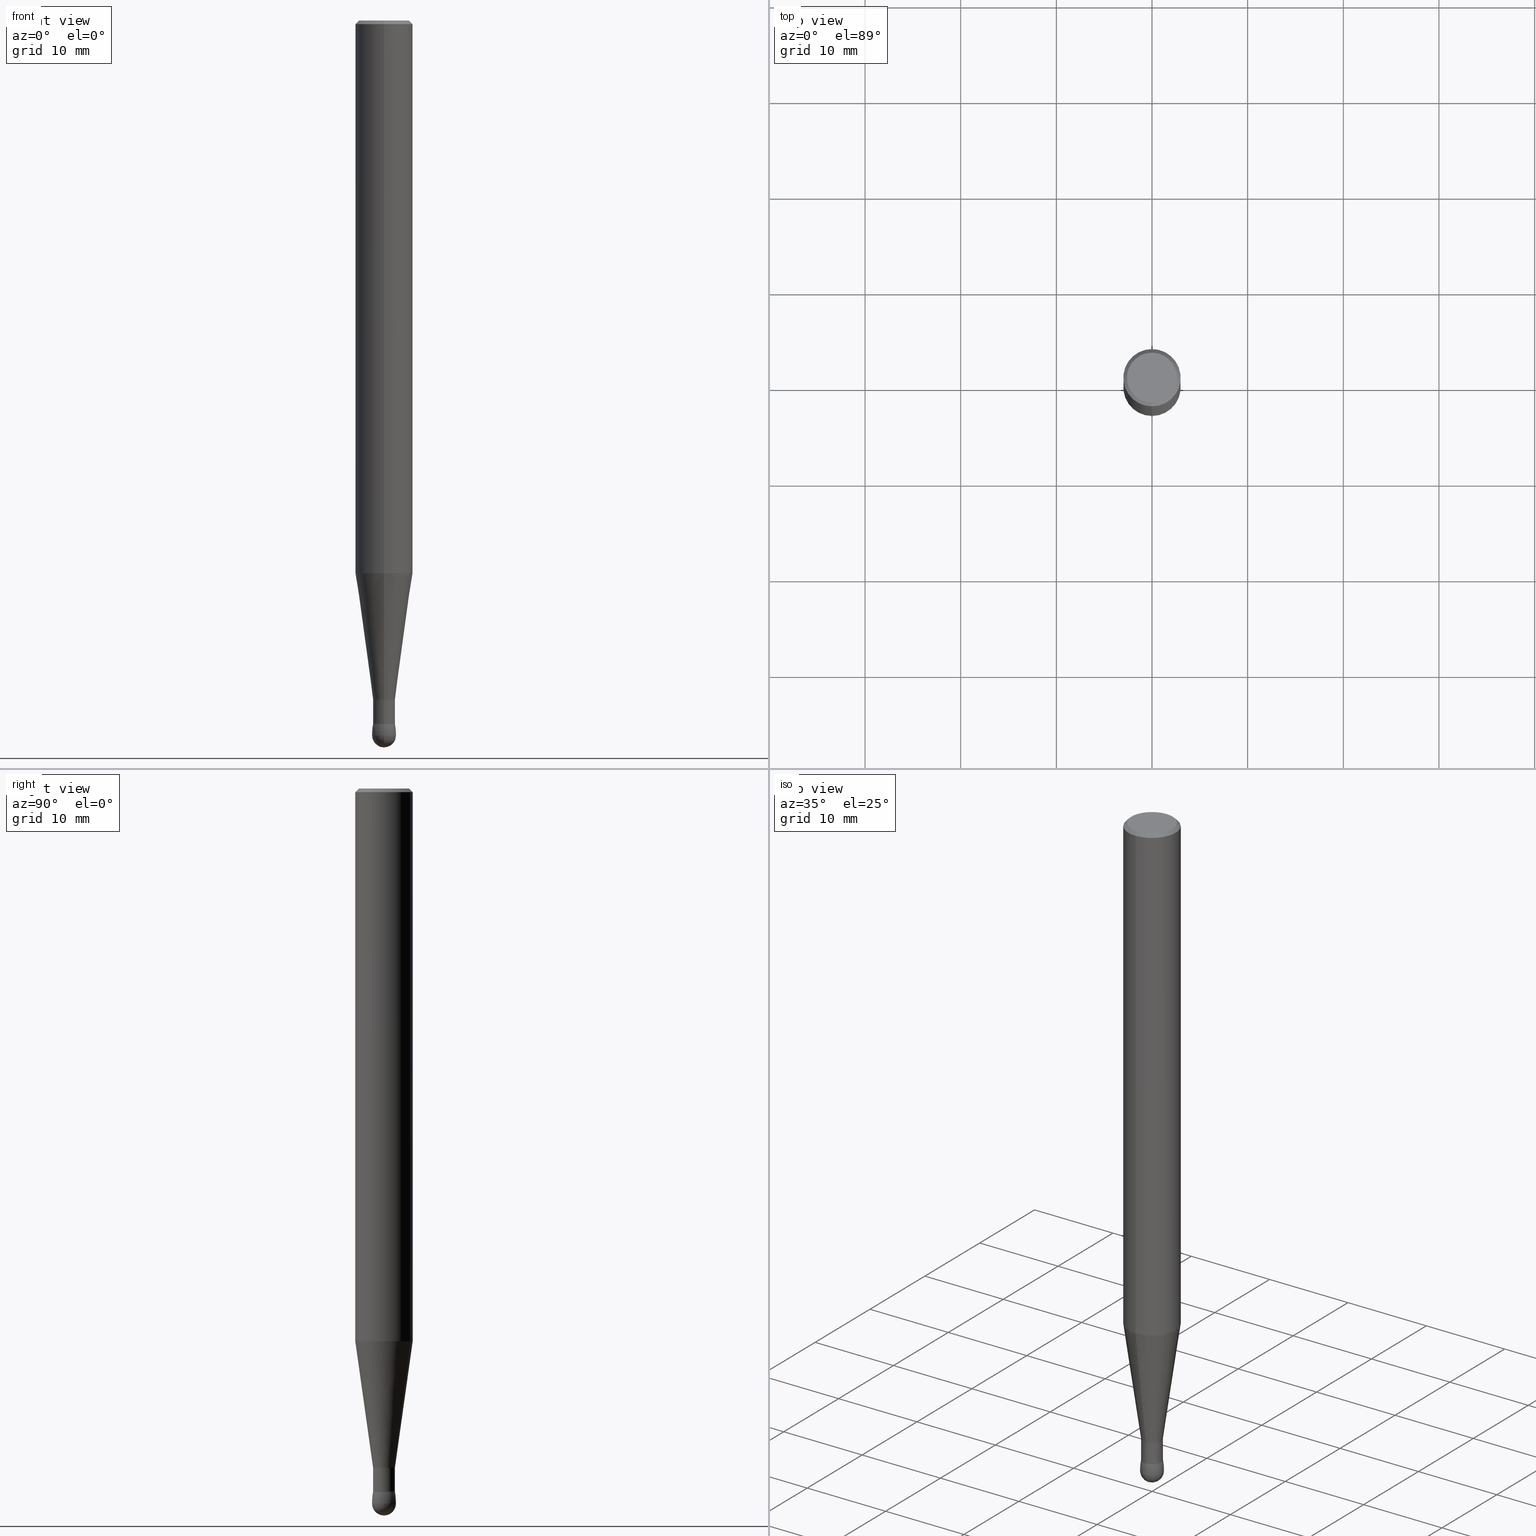
[diagram: canonical four-view strip — front | top / right | iso, engineering-drawing reading convention]
A machine part, canonical four-view strip (front | top / right | iso — engineering-drawing reading convention). The complete STEP part file that produces these views, byte-faithful:
ISO-10303-21;
HEADER;
FILE_DESCRIPTION (( 'STEP AP203' ),
    '1' );
FILE_NAME ('91352.STEP',
    '2024-02-29T19:21:59',
    ( '' ),
    ( '' ),
    'SwSTEP 2.0',
    'SolidWorks 2023',
    '' );
FILE_SCHEMA (( 'CONFIG_CONTROL_DESIGN' ));
ENDSEC;

DATA;
#1 = AXIS2_PLACEMENT_3D ( 'NONE', #36, #193, #232 ) ;
#2 = DIRECTION ( 'NONE',  ( -9.718405697420262401E-16, -0.1391731009600623015, 0.9902680687415706950 ) ) ;
#3 = ORIENTED_EDGE ( 'NONE', *, *, #438, .F. ) ;
#4 = FACE_OUTER_BOUND ( 'NONE', #248, .T. ) ;
#5 = AXIS2_PLACEMENT_3D ( 'NONE', #273, #427, #240 ) ;
#6 = EDGE_LOOP ( 'NONE', ( #322, #394 ) ) ;
#7 = AXIS2_PLACEMENT_3D ( 'NONE', #8, #279, #49 ) ;
#8 = CARTESIAN_POINT ( 'NONE',  ( -1.712915523707316760E-15, -0.2410714285714394556, -2.942899999999999405 ) ) ;
#9 = EDGE_CURVE ( 'NONE', #94, #92, #176, .T. ) ;
#10 = ORIENTED_EDGE ( 'NONE', *, *, #363, .T. ) ;
#11 = ORIENTED_EDGE ( 'NONE', *, *, #383, .F. ) ;
#12 = DIRECTION ( 'NONE',  ( 6.982962677686265922E-15, 1.000000000000000000, 0.000000000000000000 ) ) ;
#13 = ORIENTED_EDGE ( 'NONE', *, *, #271, .F. ) ;
#14 = ADVANCED_FACE ( 'NONE', ( #58 ), #180, .T. ) ;
#15 = DIRECTION ( 'NONE',  ( -6.388744773466957899E-29, -2.155514283634369569E-15, 1.000000000000000000 ) ) ;
#16 = ORIENTED_EDGE ( 'NONE', *, *, #483, .T. ) ;
#17 = ORIENTED_EDGE ( 'NONE', *, *, #407, .T. ) ;
#18 = APPROVAL_PERSON_ORGANIZATION ( #299, #229, #104 ) ;
#19 = CARTESIAN_POINT ( 'NONE',  ( -5.694606063652534434E-16, -0.04500000000001029565, -2.795300000000000118 ) ) ;
#20 = EDGE_LOOP ( 'NONE', ( #3, #91, #167, #11 ) ) ;
#21 = DIRECTION ( 'NONE',  ( -4.937700262183094951E-15, -0.7071067811892011168, 0.7071067811838938066 ) ) ;
#22 = DESIGN_CONTEXT ( 'detailed design', #415, 'design' ) ;
#24 = VERTEX_POINT ( 'NONE', #331 ) ;
#23 = CARTESIAN_POINT ( 'NONE',  ( 7.384049168616664701E-29, -1.000688621776488912E-14, -2.942900000000000293 ) ) ;
#25 = EDGE_LOOP ( 'NONE', ( #386, #246, #393, #54 ) ) ;
#26 =( NAMED_UNIT ( * ) PLANE_ANGLE_UNIT ( ) SI_UNIT ( $, .RADIAN. ) );
#27 = VECTOR ( 'NONE', #48, 39.37007874015748143 ) ;
#28 = CIRCLE ( 'NONE', #145, 0.2902714285714297349 ) ;
#29 = PERSON_AND_ORGANIZATION ( #35, #118 ) ;
#30 = COORDINATED_UNIVERSAL_TIME_OFFSET ( 5, 0, .BEHIND. ) ;
#31 = CALENDAR_DATE ( 2024, 29, 2 ) ;
#32 = CARTESIAN_POINT ( 'NONE',  ( 3.135350242281877803E-16, 0.04489999999999042674, -2.893699999999999939 ) ) ;
#33 = DATE_AND_TIME ( #69, #352 ) ;
#34 = APPROVAL_PERSON_ORGANIZATION ( #29, #486, #254 ) ;
#35 = PERSON ( 'UNSPECIFIED', 'UNSPECIFIED', 'UNSPECIFIED', ('UNSPECIFIED'), ('UNSPECIFIED'), ('UNSPECIFIED') ) ;
#36 = CARTESIAN_POINT ( 'NONE',  ( 6.829317653655446739E-29, -9.769048018491451838E-15, -2.795300000000000118 ) ) ;
#37 = CARTESIAN_POINT ( 'NONE',  ( 7.384049168616664701E-29, -1.000688621776488912E-14, -2.942900000000000293 ) ) ;
#38 = DIRECTION ( 'NONE',  ( -6.388744773466957899E-29, -2.155514283634369569E-15, 1.000000000000000000 ) ) ;
#39 = AXIS2_PLACEMENT_3D ( 'NONE', #195, #312, #464 ) ;
#40 = LINE ( 'NONE', #188, #307 ) ;
#41 = EDGE_CURVE ( 'NONE', #135, #103, #86, .T. ) ;
#42 = CARTESIAN_POINT ( 'NONE',  ( 5.794476010124239052E-16, 0.04499999999999076267, -2.795300000000000118 ) ) ;
#43 = ORIENTED_EDGE ( 'NONE', *, *, #363, .F. ) ;
#44 = PRODUCT_RELATED_PRODUCT_CATEGORY ( 'detail', '', ( #428 ) ) ;
#45 = CONICAL_SURFACE ( 'NONE', #302, 0.04500000000000052569, 0.1396263401595466969 ) ;
#46 = CARTESIAN_POINT ( 'NONE',  ( 3.193889597242395096E-16, 0.04489999999999041286, -2.893699999999999939 ) ) ;
#47 = DIRECTION ( 'NONE',  ( 2.443143009213839704E-29, -3.494812012482185664E-15, -1.000000000000000000 ) ) ;
#48 = DIRECTION ( 'NONE',  ( 2.443143009213839704E-29, -3.494812012482185664E-15, -1.000000000000000000 ) ) ;
#49 = DIRECTION ( 'NONE',  ( 7.105427357601000281E-15, 1.000000000000000000, 0.000000000000000000 ) ) ;
#50 = CARTESIAN_POINT ( 'NONE',  ( 8.246878922347458960E-16, 0.1180999999999995942, -0.01500000000000011567 ) ) ;
#51 = ORIENTED_EDGE ( 'NONE', *, *, #407, .F. ) ;
#52 = EDGE_LOOP ( 'NONE', ( #201, #10 ) ) ;
#53 = LINE ( 'NONE', #50, #55 ) ;
#54 = ORIENTED_EDGE ( 'NONE', *, *, #172, .F. ) ;
#55 = VECTOR ( 'NONE', #202, 39.37007874015748854 ) ;
#56 = DIRECTION ( 'NONE',  ( 6.982962677686265922E-15, 1.000000000000000000, -3.487819265831422394E-15 ) ) ;
#57 = CIRCLE ( 'NONE', #120, 0.04500000000000053263 ) ;
#58 = FACE_OUTER_BOUND ( 'NONE', #251, .T. ) ;
#59 = EDGE_LOOP ( 'NONE', ( #478, #162 ) ) ;
#60 = DATE_AND_TIME ( #338, #344 ) ;
#61 = AXIS2_PLACEMENT_3D ( 'NONE', #370, #296, #174 ) ;
#62 = CC_DESIGN_APPROVAL ( #242, ( #210 ) ) ;
#63 = PERSON_AND_ORGANIZATION ( #35, #118 ) ;
#64 = EDGE_CURVE ( 'NONE', #362, #92, #448, .T. ) ;
#65 = DATE_TIME_ROLE ( 'creation_date' ) ;
#66 = AXIS2_PLACEMENT_3D ( 'NONE', #77, #74, #422 ) ;
#67 = DIRECTION ( 'NONE',  ( 2.443143009213839704E-29, -3.494812012482185664E-15, -1.000000000000000000 ) ) ;
#68 = EDGE_CURVE ( 'NONE', #418, #208, #410, .T. ) ;
#69 = CALENDAR_DATE ( 2024, 29, 2 ) ;
#70 = AXIS2_PLACEMENT_3D ( 'NONE', #487, #316, #277 ) ;
#71 = FACE_OUTER_BOUND ( 'NONE', #235, .T. ) ;
#72 = AXIS2_PLACEMENT_3D ( 'NONE', #270, #90, #156 ) ;
#73 = CC_DESIGN_APPROVAL ( #486, ( #391 ) ) ;
#74 = DIRECTION ( 'NONE',  ( 2.443143009213839704E-29, -3.494812012482185664E-15, -1.000000000000000000 ) ) ;
#75 = ADVANCED_BREP_SHAPE_REPRESENTATION ( '91352', ( #364, #358, #158 ), #425 ) ;
#76 = CARTESIAN_POINT ( 'NONE',  ( 3.664714513820686793E-31, -5.242218018723174662E-17, -0.01499999999999970281 ) ) ;
#77 = CARTESIAN_POINT ( 'NONE',  ( 3.664714513820686793E-31, -5.242218018723174662E-17, -0.01499999999999970281 ) ) ;
#78 = AXIS2_PLACEMENT_3D ( 'NONE', #32, #324, #213 ) ;
#79 = VERTEX_POINT ( 'NONE', #253 ) ;
#80 = CARTESIAN_POINT ( 'NONE',  ( 6.829317653655446739E-29, -9.769048018491451838E-15, -2.795300000000000118 ) ) ;
#81 = ADVANCED_FACE ( 'NONE', ( #401 ), #224, .T. ) ;
#82 = AXIS2_PLACEMENT_3D ( 'NONE', #233, #461, #150 ) ;
#83 = CARTESIAN_POINT ( 'NONE',  ( 7.199434520694515404E-16, 0.1030999999999996503, -3.601440490485514910E-16 ) ) ;
#84 = DIRECTION ( 'NONE',  ( 6.982962677686265922E-15, 1.000000000000000000, 0.000000000000000000 ) ) ;
#85 = VERTEX_POINT ( 'NONE', #366 ) ;
#86 = CIRCLE ( 'NONE', #447, 0.04920000000000006313 ) ;
#87 = CIRCLE ( 'NONE', #462, 0.1180999999999996636 ) ;
#88 = EDGE_CURVE ( 'NONE', #103, #85, #460, .T. ) ;
#89 = DIRECTION ( 'NONE',  ( 6.982962677686265922E-15, 1.000000000000000000, 2.155514283634369569E-15 ) ) ;
#90 = DIRECTION ( 'NONE',  ( 2.443143009213839704E-29, -3.494812012482185664E-15, -1.000000000000000000 ) ) ;
#91 = ORIENTED_EDGE ( 'NONE', *, *, #185, .T. ) ;
#92 = VERTEX_POINT ( 'NONE', #301 ) ;
#93 = CARTESIAN_POINT ( 'NONE',  ( 8.391509709327309522E-16, 0.1180999999999916700, -2.275166473293722458 ) ) ;
#94 = VERTEX_POINT ( 'NONE', #412 ) ;
#95 = CIRCLE ( 'NONE', #72, 0.04500000000000055345 ) ;
#96 = CARTESIAN_POINT ( 'NONE',  ( 7.387534075530930985E-29, -1.000189563271506308E-14, -2.942899999999998961 ) ) ;
#97 = DIRECTION ( 'NONE',  ( 2.443143009213839704E-29, -3.494812012482185664E-15, -1.000000000000000000 ) ) ;
#98 = ORIENTED_EDGE ( 'NONE', *, *, #244, .F. ) ;
#99 = ADVANCED_FACE ( 'NONE', ( #71 ), #339, .T. ) ;
#100 = CIRCLE ( 'NONE', #373, 0.04500000000000055345 ) ;
#101 = APPLICATION_PROTOCOL_DEFINITION ( 'international standard', 'config_control_design', 1994, #415 ) ;
#102 = EDGE_CURVE ( 'NONE', #208, #130, #95, .T. ) ;
#103 = VERTEX_POINT ( 'NONE', #357 ) ;
#104 = APPROVAL_ROLE ( '' ) ;
#105 = CLOSED_SHELL ( 'NONE', ( #294, #225, #492, #452, #375 ) ) ;
#106 = VECTOR ( 'NONE', #206, 39.37007874015748143 ) ;
#107 = DIRECTION ( 'NONE',  ( 2.443143009213839704E-29, -3.494812012482185664E-15, -1.000000000000000000 ) ) ;
#108 = AXIS2_PLACEMENT_3D ( 'NONE', #345, #455, #116 ) ;
#109 = DIRECTION ( 'NONE',  ( 5.024295867806934309E-15, 0.7071067811892060018, 0.7071067811838889217 ) ) ;
#110 = ORIENTED_EDGE ( 'NONE', *, *, #348, .T. ) ;
#111 = ADVANCED_FACE ( 'NONE', ( #122 ), #228, .T. ) ;
#112 = SHAPE_DEFINITION_REPRESENTATION ( #354, #75 ) ;
#113 = ADVANCED_FACE ( 'NONE', ( #203 ), #243, .T. ) ;
#114 = DIRECTION ( 'NONE',  ( -2.443143009213839704E-29, 3.494812012482185664E-15, 1.000000000000000000 ) ) ;
#115 = AXIS2_PLACEMENT_3D ( 'NONE', #23, #288, #405 ) ;
#116 = DIRECTION ( 'NONE',  ( 6.982962677686265922E-15, 1.000000000000000000, 0.000000000000000000 ) ) ;
#117 = CC_DESIGN_DATE_AND_TIME_ASSIGNMENT ( #404, #215, ( #178 ) ) ;
#118 = ORGANIZATION ( 'UNSPECIFIED', 'UNSPECIFIED', '' ) ;
#119 = AXIS2_PLACEMENT_3D ( 'NONE', #37, #268, #266 ) ;
#120 = AXIS2_PLACEMENT_3D ( 'NONE', #133, #284, #343 ) ;
#121 = FACE_OUTER_BOUND ( 'NONE', #474, .T. ) ;
#122 = FACE_OUTER_BOUND ( 'NONE', #431, .T. ) ;
#123 = DIRECTION ( 'NONE',  ( -2.443143009213839704E-29, 3.494812012482185664E-15, 1.000000000000000000 ) ) ;
#124 = VECTOR ( 'NONE', #109, 39.37007874015748854 ) ;
#125 = LINE ( 'NONE', #161, #399 ) ;
#126 = ORIENTED_EDGE ( 'NONE', *, *, #226, .T. ) ;
#127 = ORIENTED_EDGE ( 'NONE', *, *, #172, .T. ) ;
#128 = CARTESIAN_POINT ( 'NONE',  ( -3.138841723619308256E-16, -0.04490000000001064667, -2.893699999999999939 ) ) ;
#129 = DIRECTION ( 'NONE',  ( 6.982962677686266711E-15, 1.000000000000000000, 0.000000000000000000 ) ) ;
#130 = VERTEX_POINT ( 'NONE', #430 ) ;
#131 = EDGE_CURVE ( 'NONE', #362, #24, #490, .T. ) ;
#132 = DIRECTION ( 'NONE',  ( 2.443143009213839704E-29, -3.494812012482185664E-15, -1.000000000000000000 ) ) ;
#133 = CARTESIAN_POINT ( 'NONE',  ( 7.069722925762088984E-29, -1.011293752051969866E-14, -2.893699999999999939 ) ) ;
#134 = CARTESIAN_POINT ( 'NONE',  ( -8.102248135367445696E-16, -0.1181000000000097527, -2.893699999999999051 ) ) ;
#135 = VERTEX_POINT ( 'NONE', #477 ) ;
#136 = DIRECTION ( 'NONE',  ( 1.000000000000000000, -6.982962677686265922E-15, 4.883557194083112901E-29 ) ) ;
#137 = CC_DESIGN_PERSON_AND_ORGANIZATION_ASSIGNMENT ( #227, #330, ( #178 ) ) ;
#138 = CARTESIAN_POINT ( 'NONE',  ( -3.087224098996519874E-16, -0.04500000000001066341, -2.893699999999999939 ) ) ;
#139 = AXIS2_PLACEMENT_3D ( 'NONE', #466, #173, #89 ) ;
#140 = COORDINATED_UNIVERSAL_TIME_OFFSET ( 5, 0, .BEHIND. ) ;
#141 = CARTESIAN_POINT ( 'NONE',  ( 7.575989275610084022E-29, -9.732017059997860271E-15, -2.942899999999999849 ) ) ;
#142 = APPROVAL_DATE_TIME ( #449, #242 ) ;
#143 = EDGE_LOOP ( 'NONE', ( #281, #171, #265, #441 ) ) ;
#144 = AXIS2_PLACEMENT_3D ( 'NONE', #456, #38, #385 ) ;
#145 = AXIS2_PLACEMENT_3D ( 'NONE', #305, #382, #236 ) ;
#146 = CALENDAR_DATE ( 2024, 29, 2 ) ;
#147 = CIRCLE ( 'NONE', #209, 0.04490000000000052977 ) ;
#148 = APPROVAL_DATE_TIME ( #33, #229 ) ;
#149 = CIRCLE ( 'NONE', #262, 0.04500000000000052569 ) ;
#150 = DIRECTION ( 'NONE',  ( 6.982962677686265922E-15, 1.000000000000000000, -3.494812012482185269E-15 ) ) ;
#151 = AXIS2_PLACEMENT_3D ( 'NONE', #96, #15, #249 ) ;
#152 = EDGE_CURVE ( 'NONE', #92, #238, #445, .T. ) ;
#153 = CIRCLE ( 'NONE', #1, 0.04500000000000052569 ) ;
#154 = LINE ( 'NONE', #239, #124 ) ;
#155 = FACE_OUTER_BOUND ( 'NONE', #6, .T. ) ;
#156 = DIRECTION ( 'NONE',  ( 6.982962677686265922E-15, 1.000000000000000000, 0.000000000000000000 ) ) ;
#157 = DIRECTION ( 'NONE',  ( 2.443143009213839704E-29, -3.494812012482185664E-15, -1.000000000000000000 ) ) ;
#158 = AXIS2_PLACEMENT_3D ( 'NONE', #295, #334, #289 ) ;
#159 = ORIENTED_EDGE ( 'NONE', *, *, #102, .T. ) ;
#160 = ORIENTED_EDGE ( 'NONE', *, *, #333, .F. ) ;
#161 = CARTESIAN_POINT ( 'NONE',  ( -3.135350242280463770E-16, -0.04490000000001064667, -2.893699999999999939 ) ) ;
#162 = ORIENTED_EDGE ( 'NONE', *, *, #438, .T. ) ;
#163 = ADVANCED_FACE ( 'NONE', ( #314 ), #237, .T. ) ;
#164 = ORIENTED_EDGE ( 'NONE', *, *, #453, .F. ) ;
#165 = ORIENTED_EDGE ( 'NONE', *, *, #185, .F. ) ;
#166 =( LENGTH_UNIT ( ) NAMED_UNIT ( * ) SI_UNIT ( $, .METRE. ) );
#167 = ORIENTED_EDGE ( 'NONE', *, *, #379, .T. ) ;
#168 = CIRCLE ( 'NONE', #472, 0.04490000000000052977 ) ;
#169 = EDGE_CURVE ( 'NONE', #79, #467, #57, .T. ) ;
#170 = FACE_OUTER_BOUND ( 'NONE', #52, .T. ) ;
#171 = ORIENTED_EDGE ( 'NONE', *, *, #64, .T. ) ;
#172 = EDGE_CURVE ( 'NONE', #282, #130, #491, .T. ) ;
#173 = DIRECTION ( 'NONE',  ( 6.388744773466956778E-29, 2.155514283634369569E-15, -1.000000000000000000 ) ) ;
#174 = DIRECTION ( 'NONE',  ( 6.982962677686265922E-15, 1.000000000000000000, -3.494812012482185269E-15 ) ) ;
#175 = ORIENTED_EDGE ( 'NONE', *, *, #333, .T. ) ;
#176 = CIRCLE ( 'NONE', #454, 0.1180999999999996358 ) ;
#177 = APPROVAL_DATE_TIME ( #451, #486 ) ;
#178 = SECURITY_CLASSIFICATION ( '', '', #376 ) ;
#179 = COORDINATED_UNIVERSAL_TIME_OFFSET ( 5, 0, .BEHIND. ) ;
#180 = CYLINDRICAL_SURFACE ( 'NONE', #432, 0.1180999999999996358 ) ;
#181 = CIRCLE ( 'NONE', #119, 0.04920000000000033374 ) ;
#182 = LENGTH_MEASURE_WITH_UNIT ( LENGTH_MEASURE( 0.02539999999999999897 ), #166 );
#183 = ADVANCED_FACE ( 'NONE', ( #489 ), #446, .T. ) ;
#184 = LOCAL_TIME ( 14, 21, 59.00000000000000000, #372 ) ;
#185 = EDGE_CURVE ( 'NONE', #468, #130, #154, .T. ) ;
#186 = MECHANICAL_CONTEXT ( 'NONE', #371, 'mechanical' ) ;
#187 = ORIENTED_EDGE ( 'NONE', *, *, #169, .F. ) ;
#188 = CARTESIAN_POINT ( 'NONE',  ( 8.246878922348163019E-16, 0.1180999999999895328, -2.893700000000000383 ) ) ;
#189 = CARTESIAN_POINT ( 'NONE',  ( 7.069722925762087863E-29, -1.011293752051970024E-14, -2.893699999999999939 ) ) ;
#190 = EDGE_LOOP ( 'NONE', ( #423, #346, #127, #402 ) ) ;
#191 = CC_DESIGN_APPROVAL ( #229, ( #178 ) ) ;
#192 = DIRECTION ( 'NONE',  ( 2.443143009213839704E-29, -3.494812012482185664E-15, -1.000000000000000000 ) ) ;
#193 = DIRECTION ( 'NONE',  ( 2.443143009213839704E-29, -3.494812012482185664E-15, -1.000000000000000000 ) ) ;
#194 = ORIENTED_EDGE ( 'NONE', *, *, #88, .F. ) ;
#195 = CARTESIAN_POINT ( 'NONE',  ( 5.558557064025262488E-29, -7.951279121263629209E-15, -2.275166473293722014 ) ) ;
#196 = CARTESIAN_POINT ( 'NONE',  ( -7.587710785535285755E-16, -0.1030999999999996503, 3.603151184869120747E-16 ) ) ;
#197 = VECTOR ( 'NONE', #2, 39.37007874015748854 ) ;
#198 = CARTESIAN_POINT ( 'NONE',  ( 7.069722925762087863E-29, -1.011293752051970024E-14, -2.893699999999999939 ) ) ;
#199 = CARTESIAN_POINT ( 'NONE',  ( 7.069722925762087863E-29, -1.011293752051970024E-14, -2.893699999999999939 ) ) ;
#200 = DIRECTION ( 'NONE',  ( 6.982962677686265922E-15, 1.000000000000000000, 0.000000000000000000 ) ) ;
#201 = ORIENTED_EDGE ( 'NONE', *, *, #169, .T. ) ;
#202 = DIRECTION ( 'NONE',  ( 4.937700262164594585E-15, 0.7071067811865517916, -0.7071067811865430208 ) ) ;
#203 = FACE_OUTER_BOUND ( 'NONE', #25, .T. ) ;
#204 = EDGE_CURVE ( 'NONE', #24, #362, #264, .T. ) ;
#205 = ORIENTED_EDGE ( 'NONE', *, *, #152, .T. ) ;
#206 = DIRECTION ( 'NONE',  ( 9.888843590037931308E-16, 0.1391731009600692404, 0.9902680687415698069 ) ) ;
#207 = AXIS2_PLACEMENT_3D ( 'NONE', #479, #241, #356 ) ;
#208 = VERTEX_POINT ( 'NONE', #308 ) ;
#209 = AXIS2_PLACEMENT_3D ( 'NONE', #189, #157, #417 ) ;
#210 = PRODUCT_DEFINITION ( 'UNKNOWN', '', #391, #22 ) ;
#211 = CARTESIAN_POINT ( 'NONE',  ( 3.346656285430822984E-16, 0.04499999999999042960, -2.893699999999999939 ) ) ;
#212 = UNCERTAINTY_MEASURE_WITH_UNIT (LENGTH_MEASURE( 1.000000000000000082E-05 ), #444, 'distance_accuracy_value', 'NONE');
#213 = DIRECTION ( 'NONE',  ( 6.982962677686265922E-15, 1.000000000000000000, -3.494812012482185664E-15 ) ) ;
#214 = ORIENTED_EDGE ( 'NONE', *, *, #419, .T. ) ;
#215 = DATE_TIME_ROLE ( 'classification_date' ) ;
#216 = VECTOR ( 'NONE', #67, 39.37007874015748143 ) ;
#217 = PERSON_AND_ORGANIZATION_ROLE ( 'design_owner' ) ;
#218 = EDGE_CURVE ( 'NONE', #421, #468, #147, .T. ) ;
#219 = DIMENSIONAL_EXPONENTS ( 1.000000000000000000, 0.000000000000000000, 0.000000000000000000, 0.000000000000000000, 0.000000000000000000, 0.000000000000000000, 0.000000000000000000 ) ;
#220 = AXIS2_PLACEMENT_3D ( 'NONE', #276, #390, #395 ) ;
#221 = PERSON_AND_ORGANIZATION ( #35, #118 ) ;
#222 = CARTESIAN_POINT ( 'NONE',  ( -8.102248135368149755E-16, -0.1180999999999996913, -0.01499999999999929168 ) ) ;
#223 = APPROVAL_STATUS ( 'not_yet_approved' ) ;
#224 = PLANE ( 'NONE',  #78 ) ;
#225 = ADVANCED_FACE ( 'NONE', ( #121 ), #351, .T. ) ;
#226 = EDGE_CURVE ( 'NONE', #94, #398, #40, .T. ) ;
#227 = PERSON_AND_ORGANIZATION ( #35, #118 ) ;
#228 = CONICAL_SURFACE ( 'NONE', #5, 0.04500000000000052569, 0.1396263401595466969 ) ;
#229 = APPROVAL ( #291, 'UNSPECIFIED' ) ;
#230 = AXIS2_PLACEMENT_3D ( 'NONE', #442, #136, #315 ) ;
#231 = DIRECTION ( 'NONE',  ( 2.443143009213839704E-29, -3.494812012482185664E-15, -1.000000000000000000 ) ) ;
#232 = DIRECTION ( 'NONE',  ( 6.982962677686265922E-15, 1.000000000000000000, 0.000000000000000000 ) ) ;
#233 = CARTESIAN_POINT ( 'NONE',  ( 0.000000000000000000, 0.000000000000000000, 0.000000000000000000 ) ) ;
#234 = EDGE_CURVE ( 'NONE', #282, #418, #153, .T. ) ;
#235 = EDGE_LOOP ( 'NONE', ( #306, #205, #51, #367 ) ) ;
#236 = DIRECTION ( 'NONE',  ( -6.982962677686265922E-15, -1.000000000000000000, 0.000000000000000000 ) ) ;
#237 = CONICAL_SURFACE ( 'NONE', #298, 0.04490000000000052977, 0.7853981634012046076 ) ;
#238 = VERTEX_POINT ( 'NONE', #340 ) ;
#239 = CARTESIAN_POINT ( 'NONE',  ( 3.190336883563593507E-16, 0.04489999999999041286, -2.893699999999999939 ) ) ;
#240 = DIRECTION ( 'NONE',  ( -6.982962677686265922E-15, -1.000000000000000000, 0.000000000000000000 ) ) ;
#241 = DIRECTION ( 'NONE',  ( -6.388744773466957899E-29, -2.155514283634369569E-15, 1.000000000000000000 ) ) ;
#242 = APPROVAL ( #257, 'UNSPECIFIED' ) ;
#243 = CYLINDRICAL_SURFACE ( 'NONE', #413, 0.04500000000000054651 ) ;
#244 = EDGE_CURVE ( 'NONE', #418, #282, #149, .T. ) ;
#245 = ORIENTED_EDGE ( 'NONE', *, *, #309, .T. ) ;
#246 = ORIENTED_EDGE ( 'NONE', *, *, #68, .T. ) ;
#247 = LINE ( 'NONE', #283, #106 ) ;
#248 = EDGE_LOOP ( 'NONE', ( #384, #98, #245, #175 ) ) ;
#249 = DIRECTION ( 'NONE',  ( -6.982962677686265922E-15, -1.000000000000000000, -2.155514283634369569E-15 ) ) ;
#250 = TOROIDAL_SURFACE ( 'NONE', #144, -0.2410714285714294636, 0.2902714285714297349 ) ;
#251 = EDGE_LOOP ( 'NONE', ( #397, #110, #126, #160 ) ) ;
#252 = PERSON_AND_ORGANIZATION ( #35, #118 ) ;
#253 = CARTESIAN_POINT ( 'NONE',  ( -3.142333204958150277E-16, -0.04500000000001064954, -2.893699999999999939 ) ) ;
#254 = APPROVAL_ROLE ( '' ) ;
#255 = DIRECTION ( 'NONE',  ( 6.982962677686265922E-15, 1.000000000000000000, -3.487819265831422394E-15 ) ) ;
#256 = APPROVAL_PERSON_ORGANIZATION ( #221, #242, #411 ) ;
#257 = APPROVAL_STATUS ( 'not_yet_approved' ) ;
#258 = ADVANCED_FACE ( 'NONE', ( #4 ), #45, .T. ) ;
#259 = DIRECTION ( 'NONE',  ( -4.851104656541010818E-15, -0.7071067811865567876, -0.7071067811865382469 ) ) ;
#260 = PERSON_AND_ORGANIZATION_ROLE ( 'creator' ) ;
#261 = CONICAL_SURFACE ( 'NONE', #220, 0.04490000000000052977, 0.7853981634012046076 ) ;
#262 = AXIS2_PLACEMENT_3D ( 'NONE', #80, #458, #381 ) ;
#263 = CARTESIAN_POINT ( 'NONE',  ( 3.142333204959564310E-16, 0.04499999999999042960, -2.893699999999999939 ) ) ;
#264 = CIRCLE ( 'NONE', #82, 0.1030999999999996503 ) ;
#265 = ORIENTED_EDGE ( 'NONE', *, *, #9, .F. ) ;
#266 = DIRECTION ( 'NONE',  ( -6.982962677686266711E-15, -1.000000000000000000, 0.000000000000000000 ) ) ;
#267 = CONICAL_SURFACE ( 'NONE', #378, 0.1180999999999996358, 0.7853981633974579379 ) ;
#268 = DIRECTION ( 'NONE',  ( -6.388744773466957899E-29, -2.155514283634369569E-15, 1.000000000000000000 ) ) ;
#269 = EDGE_CURVE ( 'NONE', #85, #103, #181, .T. ) ;
#270 = CARTESIAN_POINT ( 'NONE',  ( 7.069478611461167821E-29, -1.011258803931845422E-14, -2.893600000000000616 ) ) ;
#271 = EDGE_CURVE ( 'NONE', #103, #79, #28, .T. ) ;
#272 = CYLINDRICAL_SURFACE ( 'NONE', #424, 0.04500000000000054651 ) ;
#273 = CARTESIAN_POINT ( 'NONE',  ( 6.829317653655446739E-29, -9.769048018491451838E-15, -2.795300000000000118 ) ) ;
#274 = ORIENTED_EDGE ( 'NONE', *, *, #41, .T. ) ;
#275 = EDGE_LOOP ( 'NONE', ( #165, #465, #434, #159 ) ) ;
#276 = CARTESIAN_POINT ( 'NONE',  ( 7.069722925762087863E-29, -1.011293752051970024E-14, -2.893699999999999939 ) ) ;
#277 = DIRECTION ( 'NONE',  ( 6.982962677686265922E-15, 1.000000000000000000, -4.626330217890383536E-15 ) ) ;
#278 = EDGE_LOOP ( 'NONE', ( #319, #16, #187, #13 ) ) ;
#279 = DIRECTION ( 'NONE',  ( 1.000000000000000000, -7.105427357601001070E-15, 4.857159757403420678E-29 ) ) ;
#280 = FACE_OUTER_BOUND ( 'NONE', #342, .T. ) ;
#281 = ORIENTED_EDGE ( 'NONE', *, *, #204, .T. ) ;
#282 = VERTEX_POINT ( 'NONE', #42 ) ;
#283 = CARTESIAN_POINT ( 'NONE',  ( 3.197442310921170554E-16, 0.04499999999999076267, -2.795300000000000118 ) ) ;
#284 = DIRECTION ( 'NONE',  ( -6.388744773466957899E-29, -2.155514283634369569E-15, 1.000000000000000000 ) ) ;
#285 = EDGE_LOOP ( 'NONE', ( #325, #389, #194 ) ) ;
#286 = DIRECTION ( 'NONE',  ( 2.443143009213839704E-29, -3.494812012482185664E-15, -1.000000000000000000 ) ) ;
#287 = CIRCLE ( 'NONE', #39, 0.1180999999999996636 ) ;
#288 = DIRECTION ( 'NONE',  ( -6.388744773466957899E-29, -2.155514283634369569E-15, 1.000000000000000000 ) ) ;
#289 = DIRECTION ( 'NONE',  ( 1.000000000000000000, 0.000000000000000000, 0.000000000000000000 ) ) ;
#290 = ORIENTED_EDGE ( 'NONE', *, *, #348, .F. ) ;
#291 = APPROVAL_STATUS ( 'not_yet_approved' ) ;
#292 = DIRECTION ( 'NONE',  ( -7.105427357600999492E-15, -1.000000000000000000, 0.000000000000000000 ) ) ;
#293 = EDGE_LOOP ( 'NONE', ( #437, #459, #214, #290 ) ) ;
#294 = ADVANCED_FACE ( 'NONE', ( #341 ), #250, .T. ) ;
#295 = CARTESIAN_POINT ( 'NONE',  ( 0.000000000000000000, 0.000000000000000000, 0.000000000000000000 ) ) ;
#296 = DIRECTION ( 'NONE',  ( 2.443143009213839704E-29, -3.494812012482185664E-15, -1.000000000000000000 ) ) ;
#297 = DIRECTION ( 'NONE',  ( 2.443143009213839704E-29, -3.494812012482185664E-15, -1.000000000000000000 ) ) ;
#298 = AXIS2_PLACEMENT_3D ( 'NONE', #198, #123, #476 ) ;
#299 = PERSON_AND_ORGANIZATION ( #35, #118 ) ;
#300 = CC_DESIGN_PERSON_AND_ORGANIZATION_ASSIGNMENT ( #336, #406, ( #391 ) ) ;
#301 = CARTESIAN_POINT ( 'NONE',  ( -8.102248135368149755E-16, -0.1180999999999996913, -0.01499999999999929168 ) ) ;
#302 = AXIS2_PLACEMENT_3D ( 'NONE', #303, #114, #493 ) ;
#303 = CARTESIAN_POINT ( 'NONE',  ( 6.829317653655446739E-29, -9.769048018491451838E-15, -2.795300000000000118 ) ) ;
#304 = CIRCLE ( 'NONE', #207, 0.04500000000000053263 ) ;
#305 = CARTESIAN_POINT ( 'NONE',  ( 1.683392788370876227E-15, 0.2410714285714194716, -2.942899999999998073 ) ) ;
#306 = ORIENTED_EDGE ( 'NONE', *, *, #9, .T. ) ;
#307 = VECTOR ( 'NONE', #107, 39.37007874015748143 ) ;
#308 = CARTESIAN_POINT ( 'NONE',  ( -3.087224098996544526E-16, -0.04500000000001067035, -2.893600000000000616 ) ) ;
#309 = EDGE_CURVE ( 'NONE', #418, #238, #420, .T. ) ;
#310 = PLANE ( 'NONE',  #480 ) ;
#311 = CIRCLE ( 'NONE', #484, 0.1180999999999996358 ) ;
#312 = DIRECTION ( 'NONE',  ( 2.443143009213839704E-29, -3.494812012482185664E-15, -1.000000000000000000 ) ) ;
#313 = CC_DESIGN_PERSON_AND_ORGANIZATION_ASSIGNMENT ( #252, #260, ( #210 ) ) ;
#314 = FACE_OUTER_BOUND ( 'NONE', #20, .T. ) ;
#315 = DIRECTION ( 'NONE',  ( 6.982962677686265133E-15, 1.000000000000000000, 0.000000000000000000 ) ) ;
#316 = DIRECTION ( 'NONE',  ( 2.443143009213839704E-29, -3.494812012482185664E-15, -1.000000000000000000 ) ) ;
#317 = ORIENTED_EDGE ( 'NONE', *, *, #271, .T. ) ;
#318 = FACE_OUTER_BOUND ( 'NONE', #293, .T. ) ;
#319 = ORIENTED_EDGE ( 'NONE', *, *, #88, .T. ) ;
#320 = CARTESIAN_POINT ( 'NONE',  ( 5.558557064025262488E-29, -7.951279121263629209E-15, -2.275166473293722014 ) ) ;
#321 = CC_DESIGN_SECURITY_CLASSIFICATION ( #178, ( #391 ) ) ;
#322 = ORIENTED_EDGE ( 'NONE', *, *, #204, .F. ) ;
#323 = DIRECTION ( 'NONE',  ( 2.443143009213839704E-29, -3.494812012482185664E-15, -1.000000000000000000 ) ) ;
#324 = DIRECTION ( 'NONE',  ( 2.443143009213839143E-29, -3.494812012482185664E-15, -1.000000000000000000 ) ) ;
#325 = ORIENTED_EDGE ( 'NONE', *, *, #41, .F. ) ;
#326 = CARTESIAN_POINT ( 'NONE',  ( 7.069478611461167821E-29, -1.011258803931845422E-14, -2.893600000000000616 ) ) ;
#327 = CLOSED_SHELL ( 'NONE', ( #99, #183, #163, #113, #111, #258, #347, #396, #81, #332, #471, #14 ) ) ;
#328 =( NAMED_UNIT ( * ) SI_UNIT ( $, .STERADIAN. ) SOLID_ANGLE_UNIT ( ) );
#329 = CC_DESIGN_DATE_AND_TIME_ASSIGNMENT ( #60, #65, ( #210 ) ) ;
#330 = PERSON_AND_ORGANIZATION_ROLE ( 'classification_officer' ) ;
#331 = CARTESIAN_POINT ( 'NONE',  ( 7.199434520694515404E-16, 0.1030999999999996503, -3.603151184869120747E-16 ) ) ;
#332 = ADVANCED_FACE ( 'NONE', ( #155 ), #310, .T. ) ;
#333 = EDGE_CURVE ( 'NONE', #238, #398, #287, .T. ) ;
#334 = DIRECTION ( 'NONE',  ( 0.000000000000000000, 0.000000000000000000, 1.000000000000000000 ) ) ;
#335 = CARTESIAN_POINT ( 'NONE',  ( 7.069722925762087863E-29, -1.011293752051970024E-14, -2.893699999999999939 ) ) ;
#336 = PERSON_AND_ORGANIZATION ( #35, #118 ) ;
#337 = CIRCLE ( 'NONE', #7, 0.2902714285714297349 ) ;
#338 = CALENDAR_DATE ( 2024, 29, 2 ) ;
#339 = CYLINDRICAL_SURFACE ( 'NONE', #70, 0.1180999999999996358 ) ;
#340 = CARTESIAN_POINT ( 'NONE',  ( -8.246878922346900841E-16, -0.1181000000000076156, -2.275166473293721570 ) ) ;
#341 = FACE_OUTER_BOUND ( 'NONE', #278, .T. ) ;
#342 = EDGE_LOOP ( 'NONE', ( #416, #359, #317, #43 ) ) ;
#343 = DIRECTION ( 'NONE',  ( -6.982962677686265922E-15, -1.000000000000000000, 0.000000000000000000 ) ) ;
#344 = LOCAL_TIME ( 14, 21, 59.00000000000000000, #409 ) ;
#345 = CARTESIAN_POINT ( 'NONE',  ( 7.575989275610084022E-29, -9.732017059997860271E-15, -2.942899999999999849 ) ) ;
#346 = ORIENTED_EDGE ( 'NONE', *, *, #244, .T. ) ;
#347 = ADVANCED_FACE ( 'NONE', ( #488 ), #272, .T. ) ;
#348 = EDGE_CURVE ( 'NONE', #92, #94, #311, .T. ) ;
#349 = CARTESIAN_POINT ( 'NONE',  ( -3.142333204958173450E-16, -0.04500000000001029565, -2.795300000000000118 ) ) ;
#350 = ORIENTED_EDGE ( 'NONE', *, *, #309, .F. ) ;
#351 = SPHERICAL_SURFACE ( 'NONE', #108, 0.04920000000000006313 ) ;
#352 = LOCAL_TIME ( 14, 21, 59.00000000000000000, #30 ) ;
#353 = DIRECTION ( 'NONE',  ( 6.982962677686265922E-15, 1.000000000000000000, -4.626330217890382747E-15 ) ) ;
#354 = PRODUCT_DEFINITION_SHAPE ( 'NONE', 'NONE',  #210 ) ;
#355 = DIRECTION ( 'NONE',  ( -1.000000000000000000, 6.982962677686265922E-15, -4.883557194083112901E-29 ) ) ;
#356 = DIRECTION ( 'NONE',  ( -6.982962677686265922E-15, -1.000000000000000000, 0.000000000000000000 ) ) ;
#357 = CARTESIAN_POINT ( 'NONE',  ( -3.495870259938958829E-16, -0.04920000000001006901, -2.942900000000000293 ) ) ;
#358 = MANIFOLD_SOLID_BREP ( 'Body-Move/Copy2[2]', #327 ) ;
#359 = ORIENTED_EDGE ( 'NONE', *, *, #269, .T. ) ;
#360 = FACE_OUTER_BOUND ( 'NONE', #275, .T. ) ;
#361 = CIRCLE ( 'NONE', #230, 0.04920000000000006313 ) ;
#362 = VERTEX_POINT ( 'NONE', #196 ) ;
#363 = EDGE_CURVE ( 'NONE', #467, #79, #304, .T. ) ;
#364 = MANIFOLD_SOLID_BREP ( 'Body-Move/Copy2[1]', #105 ) ;
#365 = CARTESIAN_POINT ( 'NONE',  ( 3.664714513820686793E-31, -5.242218018723174662E-17, -0.01499999999999970281 ) ) ;
#366 = CARTESIAN_POINT ( 'NONE',  ( 3.435617637422404520E-16, 0.04919999999999032786, -2.942900000000000293 ) ) ;
#367 = ORIENTED_EDGE ( 'NONE', *, *, #226, .F. ) ;
#368 = CC_DESIGN_PERSON_AND_ORGANIZATION_ASSIGNMENT ( #485, #374, ( #391 ) ) ;
#369 = APPLICATION_PROTOCOL_DEFINITION ( 'international standard', 'config_control_design', 1994, #371 ) ;
#370 = CARTESIAN_POINT ( 'NONE',  ( 0.000000000000000000, 0.000000000000000000, 0.000000000000000000 ) ) ;
#371 = APPLICATION_CONTEXT ( 'configuration controlled 3d designs of mechanical parts and assemblies' ) ;
#372 = COORDINATED_UNIVERSAL_TIME_OFFSET ( 5, 0, .BEHIND. ) ;
#373 = AXIS2_PLACEMENT_3D ( 'NONE', #326, #323, #84 ) ;
#374 = PERSON_AND_ORGANIZATION_ROLE ( 'design_supplier' ) ;
#375 = ADVANCED_FACE ( 'NONE', ( #170 ), #400, .F. ) ;
#376 = SECURITY_CLASSIFICATION_LEVEL ( 'unclassified' ) ;
#377 = CALENDAR_DATE ( 2024, 29, 2 ) ;
#378 = AXIS2_PLACEMENT_3D ( 'NONE', #365, #286, #433 ) ;
#379 = EDGE_CURVE ( 'NONE', #130, #208, #100, .T. ) ;
#380 = DIRECTION ( 'NONE',  ( 6.982962677686265922E-15, 1.000000000000000000, 0.000000000000000000 ) ) ;
#381 = DIRECTION ( 'NONE',  ( 6.982962677686265922E-15, 1.000000000000000000, 0.000000000000000000 ) ) ;
#382 = DIRECTION ( 'NONE',  ( -1.000000000000000000, 6.982962677686265922E-15, -4.883557194083112901E-29 ) ) ;
#383 = EDGE_CURVE ( 'NONE', #421, #208, #125, .T. ) ;
#384 = ORIENTED_EDGE ( 'NONE', *, *, #440, .F. ) ;
#385 = DIRECTION ( 'NONE',  ( -6.982962677686265922E-15, -1.000000000000000000, -2.155514283634369569E-15 ) ) ;
#386 = ORIENTED_EDGE ( 'NONE', *, *, #234, .T. ) ;
#387 = DIRECTION ( 'NONE',  ( -6.982962677686265922E-15, -1.000000000000000000, 3.494812012482185664E-15 ) ) ;
#388 = CARTESIAN_POINT ( 'NONE',  ( 7.069722925762087863E-29, -1.011293752051970024E-14, -2.893699999999999939 ) ) ;
#389 = ORIENTED_EDGE ( 'NONE', *, *, #453, .T. ) ;
#390 = DIRECTION ( 'NONE',  ( -2.443143009213839704E-29, 3.494812012482185664E-15, 1.000000000000000000 ) ) ;
#391 = PRODUCT_DEFINITION_FORMATION_WITH_SPECIFIED_SOURCE ( 'ANY', '', #428, .NOT_KNOWN. ) ;
#392 = CARTESIAN_POINT ( 'NONE',  ( 7.575989275610084022E-29, -9.732017059997860271E-15, -2.942899999999999849 ) ) ;
#393 = ORIENTED_EDGE ( 'NONE', *, *, #379, .F. ) ;
#394 = ORIENTED_EDGE ( 'NONE', *, *, #131, .F. ) ;
#395 = DIRECTION ( 'NONE',  ( -6.982962677686266711E-15, -1.000000000000000000, 0.000000000000000000 ) ) ;
#396 = ADVANCED_FACE ( 'NONE', ( #360 ), #261, .T. ) ;
#397 = ORIENTED_EDGE ( 'NONE', *, *, #152, .F. ) ;
#398 = VERTEX_POINT ( 'NONE', #93 ) ;
#399 = VECTOR ( 'NONE', #21, 39.37007874015748854 ) ;
#400 = PLANE ( 'NONE',  #139 ) ;
#401 = FACE_OUTER_BOUND ( 'NONE', #59, .T. ) ;
#402 = ORIENTED_EDGE ( 'NONE', *, *, #102, .F. ) ;
#403 = CC_DESIGN_PERSON_AND_ORGANIZATION_ASSIGNMENT ( #63, #217, ( #428 ) ) ;
#404 = DATE_AND_TIME ( #31, #408 ) ;
#405 = DIRECTION ( 'NONE',  ( -6.982962677686266711E-15, -1.000000000000000000, 0.000000000000000000 ) ) ;
#406 = PERSON_AND_ORGANIZATION_ROLE ( 'creator' ) ;
#407 = EDGE_CURVE ( 'NONE', #398, #238, #87, .T. ) ;
#408 = LOCAL_TIME ( 14, 21, 59.00000000000000000, #140 ) ;
#409 = COORDINATED_UNIVERSAL_TIME_OFFSET ( 5, 0, .BEHIND. ) ;
#410 = LINE ( 'NONE', #138, #216 ) ;
#411 = APPROVAL_ROLE ( '' ) ;
#412 = CARTESIAN_POINT ( 'NONE',  ( 8.246878922347458960E-16, 0.1180999999999995942, -0.01500000000000011567 ) ) ;
#413 = AXIS2_PLACEMENT_3D ( 'NONE', #388, #47, #200 ) ;
#414 = TOROIDAL_SURFACE ( 'NONE', #151, -0.2410714285714294636, 0.2902714285714297349 ) ;
#415 = APPLICATION_CONTEXT ( 'configuration controlled 3d designs of mechanical parts and assemblies' ) ;
#416 = ORIENTED_EDGE ( 'NONE', *, *, #483, .F. ) ;
#417 = DIRECTION ( 'NONE',  ( 6.982962677686266711E-15, 1.000000000000000000, 0.000000000000000000 ) ) ;
#418 = VERTEX_POINT ( 'NONE', #19 ) ;
#419 = EDGE_CURVE ( 'NONE', #24, #94, #53, .T. ) ;
#420 = LINE ( 'NONE', #349, #197 ) ;
#421 = VERTEX_POINT ( 'NONE', #128 ) ;
#422 = DIRECTION ( 'NONE',  ( 6.982962677686265922E-15, 1.000000000000000000, -3.487819265831422394E-15 ) ) ;
#423 = ORIENTED_EDGE ( 'NONE', *, *, #68, .F. ) ;
#424 = AXIS2_PLACEMENT_3D ( 'NONE', #429, #231, #380 ) ;
#425 =( GEOMETRIC_REPRESENTATION_CONTEXT ( 3 ) GLOBAL_UNCERTAINTY_ASSIGNED_CONTEXT ( ( #212 ) ) GLOBAL_UNIT_ASSIGNED_CONTEXT ( ( #444, #26, #328 ) ) REPRESENTATION_CONTEXT ( 'NONE', 'WORKASPACE' ) );
#426 = DIRECTION ( 'NONE',  ( -2.443143009213839143E-29, 3.494812012482185664E-15, 1.000000000000000000 ) ) ;
#427 = DIRECTION ( 'NONE',  ( -2.443143009213839704E-29, 3.494812012482185664E-15, 1.000000000000000000 ) ) ;
#428 = PRODUCT ( '91352', '91352', '', ( #186 ) ) ;
#429 = CARTESIAN_POINT ( 'NONE',  ( 7.069722925762087863E-29, -1.011293752051970024E-14, -2.893699999999999939 ) ) ;
#430 = CARTESIAN_POINT ( 'NONE',  ( 3.142333204959564803E-16, 0.04499999999999043654, -2.893600000000000616 ) ) ;
#431 = EDGE_LOOP ( 'NONE', ( #494, #457, #17, #350 ) ) ;
#432 = AXIS2_PLACEMENT_3D ( 'NONE', #335, #297, #450 ) ;
#433 = DIRECTION ( 'NONE',  ( 6.982962677686265922E-15, 1.000000000000000000, -3.487819265831422394E-15 ) ) ;
#434 = ORIENTED_EDGE ( 'NONE', *, *, #383, .T. ) ;
#435 = AXIS2_PLACEMENT_3D ( 'NONE', #392, #355, #12 ) ;
#436 = SPHERICAL_SURFACE ( 'NONE', #435, 0.04920000000000006313 ) ;
#437 = ORIENTED_EDGE ( 'NONE', *, *, #64, .F. ) ;
#438 = EDGE_CURVE ( 'NONE', #468, #421, #168, .T. ) ;
#439 = DIRECTION ( 'NONE',  ( 2.443143009213839704E-29, -3.494812012482185664E-15, -1.000000000000000000 ) ) ;
#440 = EDGE_CURVE ( 'NONE', #282, #398, #247, .T. ) ;
#441 = ORIENTED_EDGE ( 'NONE', *, *, #419, .F. ) ;
#442 = CARTESIAN_POINT ( 'NONE',  ( 7.575989275610084022E-29, -9.732017059997860271E-15, -2.942899999999999849 ) ) ;
#443 = LOCAL_TIME ( 14, 21, 59.00000000000000000, #179 ) ;
#444 =( CONVERSION_BASED_UNIT ( 'INCH', #182 ) LENGTH_UNIT ( ) NAMED_UNIT ( #219 ) );
#445 = LINE ( 'NONE', #134, #27 ) ;
#446 = CONICAL_SURFACE ( 'NONE', #66, 0.1180999999999996358, 0.7853981633974579379 ) ;
#447 = AXIS2_PLACEMENT_3D ( 'NONE', #141, #482, #292 ) ;
#448 = LINE ( 'NONE', #222, #469 ) ;
#449 = DATE_AND_TIME ( #146, #184 ) ;
#450 = DIRECTION ( 'NONE',  ( 6.982962677686265922E-15, 1.000000000000000000, -4.626330217890383536E-15 ) ) ;
#451 = DATE_AND_TIME ( #377, #443 ) ;
#452 = ADVANCED_FACE ( 'NONE', ( #280 ), #414, .T. ) ;
#453 = EDGE_CURVE ( 'NONE', #135, #85, #361, .T. ) ;
#454 = AXIS2_PLACEMENT_3D ( 'NONE', #76, #97, #255 ) ;
#455 = DIRECTION ( 'NONE',  ( -1.000000000000000000, 6.982962677686265922E-15, -4.883557194083112901E-29 ) ) ;
#456 = CARTESIAN_POINT ( 'NONE',  ( 7.387534075530930985E-29, -1.000189563271506308E-14, -2.942899999999998961 ) ) ;
#457 = ORIENTED_EDGE ( 'NONE', *, *, #440, .T. ) ;
#458 = DIRECTION ( 'NONE',  ( 2.443143009213839704E-29, -3.494812012482185664E-15, -1.000000000000000000 ) ) ;
#459 = ORIENTED_EDGE ( 'NONE', *, *, #131, .T. ) ;
#460 = CIRCLE ( 'NONE', #115, 0.04920000000000033374 ) ;
#461 = DIRECTION ( 'NONE',  ( 2.443143009213839704E-29, -3.494812012482185664E-15, -1.000000000000000000 ) ) ;
#462 = AXIS2_PLACEMENT_3D ( 'NONE', #320, #475, #353 ) ;
#463 = VECTOR ( 'NONE', #192, 39.37007874015748143 ) ;
#464 = DIRECTION ( 'NONE',  ( 6.982962677686265922E-15, 1.000000000000000000, -4.626330217890382747E-15 ) ) ;
#465 = ORIENTED_EDGE ( 'NONE', *, *, #218, .F. ) ;
#466 = CARTESIAN_POINT ( 'NONE',  ( 7.076453084457929971E-29, -1.010329955021040971E-14, -2.893699999999999939 ) ) ;
#467 = VERTEX_POINT ( 'NONE', #211 ) ;
#468 = VERTEX_POINT ( 'NONE', #46 ) ;
#469 = VECTOR ( 'NONE', #259, 39.37007874015748143 ) ;
#470 = FACE_OUTER_BOUND ( 'NONE', #285, .T. ) ;
#471 = ADVANCED_FACE ( 'NONE', ( #318 ), #267, .T. ) ;
#472 = AXIS2_PLACEMENT_3D ( 'NONE', #199, #132, #129 ) ;
#473 = CARTESIAN_POINT ( 'NONE',  ( 3.664714513820686793E-31, -5.242218018723174662E-17, -0.01499999999999970281 ) ) ;
#474 = EDGE_LOOP ( 'NONE', ( #164, #274, #481 ) ) ;
#475 = DIRECTION ( 'NONE',  ( 2.443143009213839704E-29, -3.494812012482185664E-15, -1.000000000000000000 ) ) ;
#476 = DIRECTION ( 'NONE',  ( -6.982962677686266711E-15, -1.000000000000000000, 0.000000000000000000 ) ) ;
#477 = CARTESIAN_POINT ( 'NONE',  ( 7.892419227536039386E-29, -9.622953126117147081E-15, -2.992100000000000204 ) ) ;
#478 = ORIENTED_EDGE ( 'NONE', *, *, #218, .T. ) ;
#479 = CARTESIAN_POINT ( 'NONE',  ( 7.069722925762088984E-29, -1.011293752051969866E-14, -2.893699999999999939 ) ) ;
#480 = AXIS2_PLACEMENT_3D ( 'NONE', #83, #426, #387 ) ;
#481 = ORIENTED_EDGE ( 'NONE', *, *, #269, .F. ) ;
#482 = DIRECTION ( 'NONE',  ( -1.000000000000000000, 7.105427357601001070E-15, -4.857159757403420678E-29 ) ) ;
#483 = EDGE_CURVE ( 'NONE', #85, #467, #337, .T. ) ;
#484 = AXIS2_PLACEMENT_3D ( 'NONE', #473, #439, #56 ) ;
#485 = PERSON_AND_ORGANIZATION ( #35, #118 ) ;
#486 = APPROVAL ( #223, 'UNSPECIFIED' ) ;
#487 = CARTESIAN_POINT ( 'NONE',  ( 7.069722925762087863E-29, -1.011293752051970024E-14, -2.893699999999999939 ) ) ;
#488 = FACE_OUTER_BOUND ( 'NONE', #190, .T. ) ;
#489 = FACE_OUTER_BOUND ( 'NONE', #143, .T. ) ;
#490 = CIRCLE ( 'NONE', #61, 0.1030999999999996503 ) ;
#491 = LINE ( 'NONE', #263, #463 ) ;
#492 = ADVANCED_FACE ( 'NONE', ( #470 ), #436, .T. ) ;
#493 = DIRECTION ( 'NONE',  ( -6.982962677686265922E-15, -1.000000000000000000, 0.000000000000000000 ) ) ;
#494 = ORIENTED_EDGE ( 'NONE', *, *, #234, .F. ) ;
ENDSEC;
END-ISO-10303-21;
